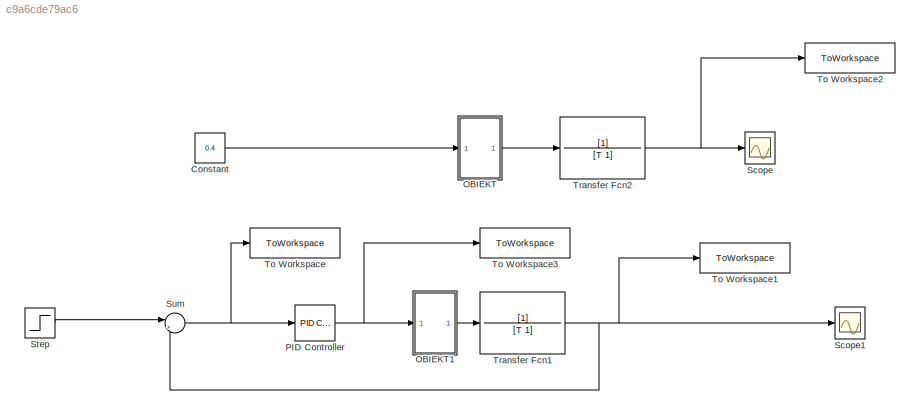
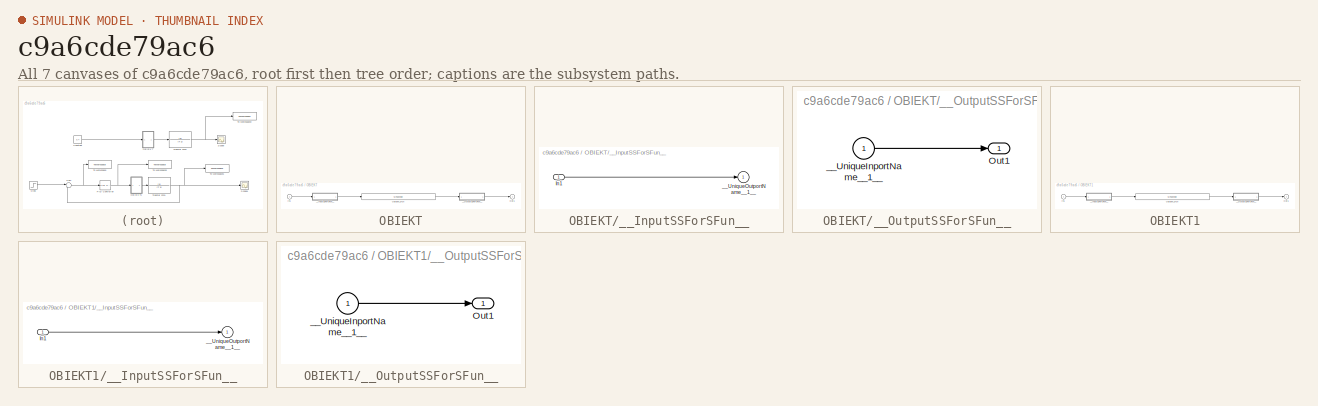
[diagram: thumbnail index - all 7 canvases of the model, root first then tree order]
MODEL slx_c9a6cde79ac6
KIND model
CONFIG AbsTol = auto
CONFIG EnableMultiTasking = off
CONFIG FixedStep = auto
CONFIG MaxStep = auto
CONFIG MinStep = auto
CONFIG RelTol = 1e-6
CONFIG SampleTimeConstraint = Unconstrained
CONFIG SolverName = VariableStepAuto
CONFIG StartTime = 0.0
CONFIG StopTime = 100
BLOCK [Constant] Constant
  Value = 0.4
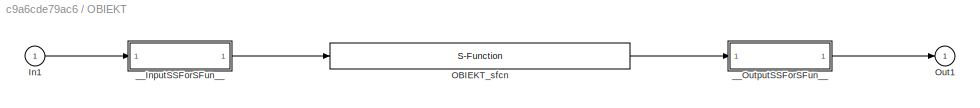
BLOCK [SubSystem] OBIEKT
BLOCK [Inport] OBIEKT/In1
BLOCK [S-Function] OBIEKT/OBIEKT_sfcn
  CopyFcn = if ~strcmp(get_param(gcb,'Linkstatus'),'none') && ...\n~strcmp(get_param(gcb,'Linkstatus'),'implicit')      \n  set_param(gcb,'LinkStatus','none');                \nend
  EnableBusSupport = off
  FunctionName = OBIEKT_sf
  SFcnIsStateOwnerBlock = off
  SFunctionDeploymentMode = off
BLOCK [Outport] OBIEKT/Out1
BLOCK [SubSystem] OBIEKT/__InputSSForSFun__
  PermitHierarchicalResolution = ExplicitOnly
BLOCK [Inport] OBIEKT/__InputSSForSFun__/In1
BLOCK [Outport] OBIEKT/__InputSSForSFun__/__UniqueOutportName__1__
BLOCK [SubSystem] OBIEKT/__OutputSSForSFun__
  PermitHierarchicalResolution = ExplicitOnly
BLOCK [Outport] OBIEKT/__OutputSSForSFun__/Out1
BLOCK [Inport] OBIEKT/__OutputSSForSFun__/__UniqueInportName__1__
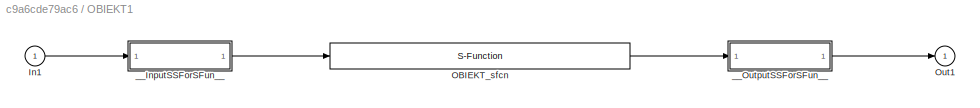
BLOCK [SubSystem] OBIEKT1
BLOCK [Inport] OBIEKT1/In1
BLOCK [S-Function] OBIEKT1/OBIEKT_sfcn
  CopyFcn = if ~strcmp(get_param(gcb,'Linkstatus'),'none') && ...\n~strcmp(get_param(gcb,'Linkstatus'),'implicit')      \n  set_param(gcb,'LinkStatus','none');                \nend
  EnableBusSupport = off
  FunctionName = OBIEKT_sf
  SFcnIsStateOwnerBlock = off
  SFunctionDeploymentMode = off
BLOCK [Outport] OBIEKT1/Out1
BLOCK [SubSystem] OBIEKT1/__InputSSForSFun__
  PermitHierarchicalResolution = ExplicitOnly
BLOCK [Inport] OBIEKT1/__InputSSForSFun__/In1
BLOCK [Outport] OBIEKT1/__InputSSForSFun__/__UniqueOutportName__1__
BLOCK [SubSystem] OBIEKT1/__OutputSSForSFun__
  PermitHierarchicalResolution = ExplicitOnly
BLOCK [Outport] OBIEKT1/__OutputSSForSFun__/Out1
BLOCK [Inport] OBIEKT1/__OutputSSForSFun__/__UniqueInportName__1__
BLOCK [Reference] PID Controller  REF=slpidlib/PID Controller
  LibrarySourceBlock = simulink/Continuous/PID Controller
  SourceBlock = slpidlib/PID Controller
  SourceType = PID 1dof
BLOCK [Scope] Scope
  Floating = off
  NumInputPorts = 1
  ScopeSpecificationString = Simulink.scopes.TimeScopeBlockCfg('CurrentConfiguration', extmgr.ConfigurationSet(extmgr.Configuration('Core','General UI',true),extmgr.Configuration('Core','Source UI',true),extmgr.Configuration('Sources','WiredSimulink',true),extmgr.Configuration('Visuals','Time Domain',true,'SerializedDisplays',{struct('MinYLimReal','-0.09487','MaxYLimReal','0.85388','YLabelReal','','MinYLimMag','0.00000','MaxY...<+1495ch>
BLOCK [Scope] Scope1
  Floating = off
  NumInputPorts = 1
  ScopeSpecificationString = Simulink.scopes.TimeScopeBlockCfg('CurrentConfiguration', extmgr.ConfigurationSet(extmgr.Configuration('Core','General UI',true),extmgr.Configuration('Core','Source UI',true),extmgr.Configuration('Sources','WiredSimulink',true,'DataLoggingVariableName','ScopeData1'),extmgr.Configuration('Visuals','Time Domain',true,'SerializedDisplays',{struct('MinYLimReal','-0.09487','MaxYLimReal','0.85388','YLab...<+1536ch>
BLOCK [Step] Step
  After = 0.5
  SampleTime = 0
  Time = 0
BLOCK [Sum] Sum
  Inputs = |+-
BLOCK [ToWorkspace] To Workspace
  FixptAsFi = on
  MaxDataPoints = inf
  SampleTime = -1
  SaveFormat = Timeseries
  VariableName = e
BLOCK [ToWorkspace] To Workspace1
  FixptAsFi = on
  MaxDataPoints = inf
  SampleTime = -1
  SaveFormat = Timeseries
  VariableName = y
BLOCK [ToWorkspace] To Workspace2
  FixptAsFi = on
  MaxDataPoints = inf
  SampleTime = -1
  SaveFormat = Timeseries
  VariableName = oryginalny
BLOCK [ToWorkspace] To Workspace3
  FixptAsFi = on
  MaxDataPoints = inf
  SampleTime = -1
  SaveFormat = Timeseries
  VariableName = u
BLOCK [TransferFcn] Transfer Fcn1
  Denominator = [T 1]
BLOCK [TransferFcn] Transfer Fcn2
  Denominator = [T 1]
LINE Constant:1 -> OBIEKT:1
LINE OBIEKT/In1:1 -> OBIEKT/__InputSSForSFun__:1
LINE OBIEKT/OBIEKT_sfcn:1 -> OBIEKT/__OutputSSForSFun__:1
LINE OBIEKT/__InputSSForSFun__/In1:1 -> OBIEKT/__InputSSForSFun__/__UniqueOutportName__1__:1
LINE OBIEKT/__InputSSForSFun__:1 -> OBIEKT/OBIEKT_sfcn:1
LINE OBIEKT/__OutputSSForSFun__/__UniqueInportName__1__:1 -> OBIEKT/__OutputSSForSFun__/Out1:1
LINE OBIEKT/__OutputSSForSFun__:1 -> OBIEKT/Out1:1
LINE OBIEKT1/In1:1 -> OBIEKT1/__InputSSForSFun__:1
LINE OBIEKT1/OBIEKT_sfcn:1 -> OBIEKT1/__OutputSSForSFun__:1
LINE OBIEKT1/__InputSSForSFun__/In1:1 -> OBIEKT1/__InputSSForSFun__/__UniqueOutportName__1__:1
LINE OBIEKT1/__InputSSForSFun__:1 -> OBIEKT1/OBIEKT_sfcn:1
LINE OBIEKT1/__OutputSSForSFun__/__UniqueInportName__1__:1 -> OBIEKT1/__OutputSSForSFun__/Out1:1
LINE OBIEKT1/__OutputSSForSFun__:1 -> OBIEKT1/Out1:1
LINE OBIEKT1:1 -> Transfer Fcn1:1
LINE OBIEKT:1 -> Transfer Fcn2:1
NET PID Controller:1 -> OBIEKT1:1, To Workspace3:1
LINE Step:1 -> Sum:1
NET Sum:1 -> PID Controller:1, To Workspace:1
NET Transfer Fcn1:1 -> Scope1:1, Sum:2, To Workspace1:1
NET Transfer Fcn2:1 -> Scope:1, To Workspace2:1
note: NET lines group one-source signal fan-out (src -> all destinations, sorted); 1:1 wires keep LINE
